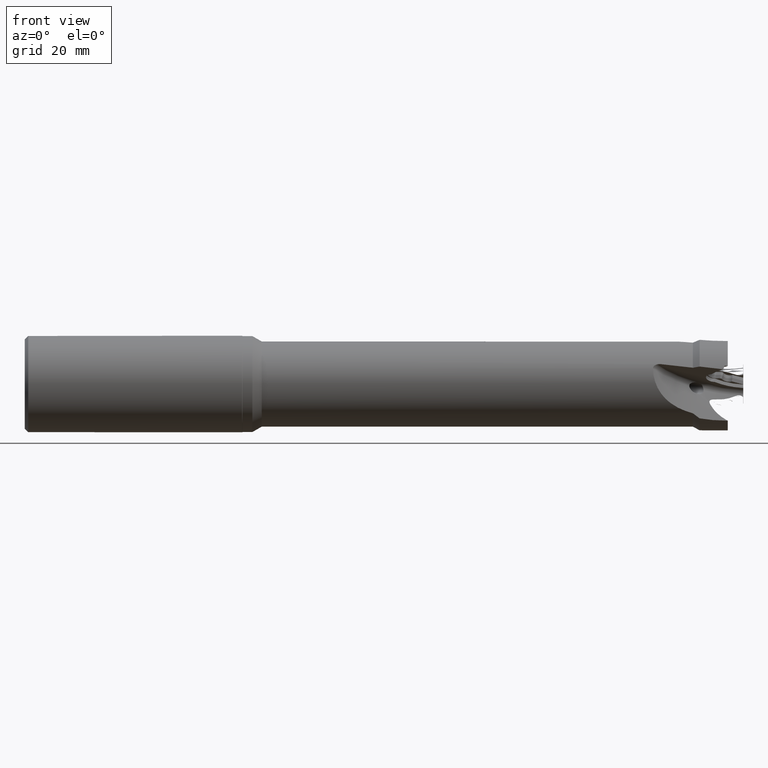
[diagram: clean part render]
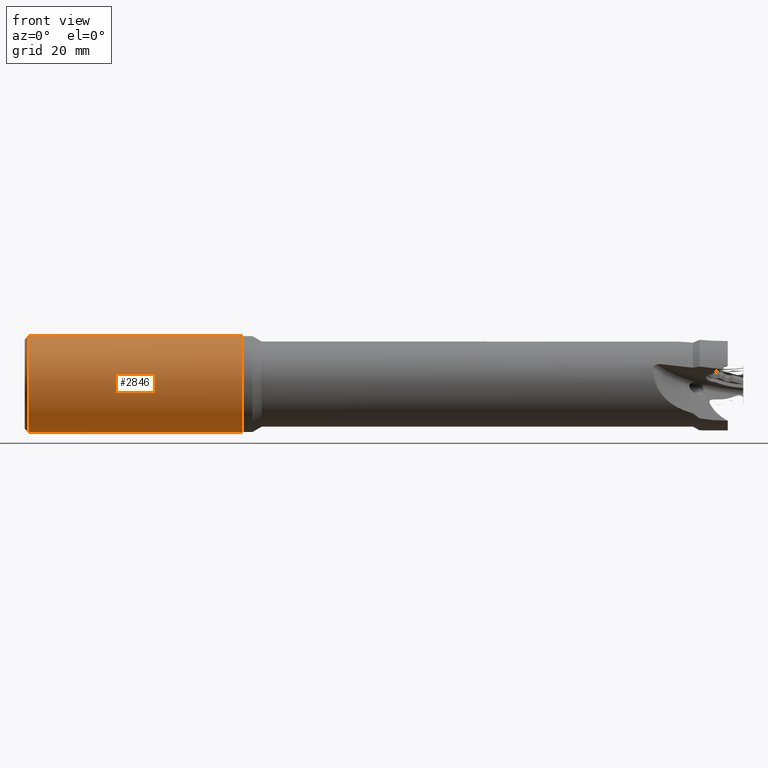
[diagram: same view with one face highlighted and labeled with its STEP entity id]
A machine part, front view. The second image highlights one B-rep face of the part: STEP entity #2846.
In plain terms, the highlighted cylindrical surface (bore or boss wall) has radius 12.5 mm, axis along (1, -0, -0).
Its self-contained STEP definition (entity closure, byte-faithful):
#55 = VERTEX_POINT ( 'NONE', #2249 ) ;
#192 = EDGE_CURVE ( 'NONE', #1430, #1270, #1428, .T. ) ;
#196 = VECTOR ( 'NONE', #2540, 1000.000000000000000 ) ;
#236 = DIRECTION ( 'NONE',  ( 1.000000000000000000, -0.0000000000000000000, -0.0000000000000000000 ) ) ;
#271 = EDGE_CURVE ( 'NONE', #2369, #2369, #1648, .T. ) ;
#353 = CARTESIAN_POINT ( 'NONE',  ( -147.7500000000000300, 9.700000000000040100, -7.884161337770732000 ) ) ;
#364 = EDGE_LOOP ( 'NONE', ( #2328, #3638, #519, #1821 ) ) ;
#379 = CARTESIAN_POINT ( 'NONE',  ( -147.7500000000000300, 9.700000000000040100, 7.884161337770732000 ) ) ;
#393 = CARTESIAN_POINT ( 'NONE',  ( -184.8999999999999500, 9.600000000000086700, 8.005623023850043700 ) ) ;
#449 = ORIENTED_EDGE ( 'NONE', *, *, #271, .T. ) ;
#519 = ORIENTED_EDGE ( 'NONE', *, *, #3494, .F. ) ;
#555 = CARTESIAN_POINT ( 'NONE',  ( -1.390646092311991700E-015, 9.700000000000040100, -7.884161337770732000 ) ) ;
#618 = CARTESIAN_POINT ( 'NONE',  ( -147.7500000000000300, 9.700000000000040100, -7.884161337770732000 ) ) ;
#653 = VERTEX_POINT ( 'NONE', #379 ) ;
#703 = CARTESIAN_POINT ( 'NONE',  ( -147.7500000000000300, 9.700000000000040100, 7.884161337770732000 ) ) ;
#724 = ORIENTED_EDGE ( 'NONE', *, *, #3837, .T. ) ;
#754 = FACE_OUTER_BOUND ( 'NONE', #3699, .T. ) ;
#786 =( BOUNDED_CURVE ( )  B_SPLINE_CURVE ( 3, ( #3462, #943, #4159, #2017 ),
 .UNSPECIFIED., .F., .F. ) 
 B_SPLINE_CURVE_WITH_KNOTS ( ( 4, 4 ),
 ( 5.600687989903622800, 6.965682624455554100 ),
 .UNSPECIFIED. ) 
 CURVE ( )  GEOMETRIC_REPRESENTATION_ITEM ( )  RATIONAL_B_SPLINE_CURVE ( ( 1.000000000000000000, 0.8506666666666691200, 0.8506666666666691200, 1.000000000000000000 ) ) 
 REPRESENTATION_ITEM ( '' )  );
#787 = ORIENTED_EDGE ( 'NONE', *, *, #1034, .F. ) ;
#816 = LINE ( 'NONE', #3388, #3562 ) ;
#828 = CARTESIAN_POINT ( 'NONE',  ( -184.8999999999999500, 9.600000000000086700, 8.005623023850043700 ) ) ;
#943 = CARTESIAN_POINT ( 'NONE',  ( -164.9028213166144800, 13.59717868338554700, 3.089404912919531600 ) ) ;
#958 = ORIENTED_EDGE ( 'NONE', *, *, #192, .F. ) ;
#986 = VERTEX_POINT ( 'NONE', #1932 ) ;
#1034 = EDGE_CURVE ( 'NONE', #2615, #986, #4345, .T. ) ;
#1117 = CARTESIAN_POINT ( 'NONE',  ( -184.8000000000000100, 9.700000000000073900, 7.884161337770690300 ) ) ;
#1270 = VERTEX_POINT ( 'NONE', #2379 ) ;
#1320 = AXIS2_PLACEMENT_3D ( 'NONE', #3827, #2757, #4538 ) ;
#1369 = CARTESIAN_POINT ( 'NONE',  ( -129.6267949192431100, 0.0000000000000000000, 0.0000000000000000000 ) ) ;
#1418 = CARTESIAN_POINT ( 'NONE',  ( -143.8528213166145500, 13.59717868338553800, 3.089404912919560400 ) ) ;
#1428 = LINE ( 'NONE', #2827, #4170 ) ;
#1430 = VERTEX_POINT ( 'NONE', #2677 ) ;
#1460 = CARTESIAN_POINT ( 'NONE',  ( -159.8500000000000200, 9.700000000000017100, 7.884161337770756000 ) ) ;
#1471 = FACE_OUTER_BOUND ( 'NONE', #3299, .T. ) ;
#1535 = CIRCLE ( 'NONE', #3860, 12.49999999999998200 ) ;
#1563 = VERTEX_POINT ( 'NONE', #3849 ) ;
#1582 = DIRECTION ( 'NONE',  ( -1.000000000000000000, 0.0000000000000000000, 0.0000000000000000000 ) ) ;
#1648 = CIRCLE ( 'NONE', #2428, 12.49999999999998200 ) ;
#1799 = DIRECTION ( 'NONE',  ( 1.000000000000000000, -0.0000000000000000000, -0.0000000000000000000 ) ) ;
#1821 = ORIENTED_EDGE ( 'NONE', *, *, #3678, .F. ) ;
#1932 = CARTESIAN_POINT ( 'NONE',  ( -184.8999999999999500, 9.600000000000079600, -8.005623023850050800 ) ) ;
#1959 = CARTESIAN_POINT ( 'NONE',  ( -184.8000000000000100, 9.700000000000073900, -7.884161337770690300 ) ) ;
#1989 = VECTOR ( 'NONE', #1582, 1000.000000000000000 ) ;
#1997 = CARTESIAN_POINT ( 'NONE',  ( -184.8664120880139000, 9.633587911986161600, -7.965345839412843400 ) ) ;
#2017 = CARTESIAN_POINT ( 'NONE',  ( -168.8000000000000100, 9.700000000000017100, -7.884161337770756000 ) ) ;
#2053 = ORIENTED_EDGE ( 'NONE', *, *, #3543, .F. ) ;
#2168 = CARTESIAN_POINT ( 'NONE',  ( -159.8500000000000200, 9.700000000000017100, -7.884161337770756000 ) ) ;
#2235 =( BOUNDED_CURVE ( )  B_SPLINE_CURVE ( 3, ( #393, #2910, #3275, #1117 ),
 .UNSPECIFIED., .F., .T. ) 
 B_SPLINE_CURVE_WITH_KNOTS ( ( 4, 4 ),
 ( 5.588101452849827000, 5.600687989903624600 ),
 .UNSPECIFIED. ) 
 CURVE ( )  GEOMETRIC_REPRESENTATION_ITEM ( )  RATIONAL_B_SPLINE_CURVE ( ( 1.000000000000000000, 0.9999867983006540700, 0.9999867983006540700, 1.000000000000000000 ) ) 
 REPRESENTATION_ITEM ( '' )  );
#2249 = CARTESIAN_POINT ( 'NONE',  ( -168.8000000000000100, 9.700000000000017100, -7.884161337770756000 ) ) ;
#2286 = CARTESIAN_POINT ( 'NONE',  ( -129.6267949192431100, 0.0000000000000000000, 12.49999999999998200 ) ) ;
#2315 = CYLINDRICAL_SURFACE ( 'NONE', #1320, 12.49999999999998200 ) ;
#2328 = ORIENTED_EDGE ( 'NONE', *, *, #4405, .F. ) ;
#2357 = EDGE_CURVE ( 'NONE', #55, #2615, #816, .T. ) ;
#2369 = VERTEX_POINT ( 'NONE', #2286 ) ;
#2370 = CARTESIAN_POINT ( 'NONE',  ( -184.8999999999999500, 0.0000000000000000000, 0.0000000000000000000 ) ) ;
#2379 = CARTESIAN_POINT ( 'NONE',  ( -168.8000000000000100, 9.700000000000017100, 7.884161337770693800 ) ) ;
#2392 = VERTEX_POINT ( 'NONE', #2511 ) ;
#2428 = AXIS2_PLACEMENT_3D ( 'NONE', #1369, #3549, #3205 ) ;
#2509 = CARTESIAN_POINT ( 'NONE',  ( -143.8528213166145500, 13.59717868338553800, -3.089404912919556000 ) ) ;
#2511 = CARTESIAN_POINT ( 'NONE',  ( -159.8500000000000200, 9.700000000000017100, -7.884161337770756000 ) ) ;
#2540 = DIRECTION ( 'NONE',  ( 1.000000000000000000, -0.0000000000000000000, -0.0000000000000000000 ) ) ;
#2615 = VERTEX_POINT ( 'NONE', #1959 ) ;
#2677 = CARTESIAN_POINT ( 'NONE',  ( -184.8000000000000100, 9.700000000000073900, 7.884161337770690300 ) ) ;
#2741 = DIRECTION ( 'NONE',  ( 0.0000000000000000000, 0.0000000000000000000, -1.000000000000000000 ) ) ;
#2757 = DIRECTION ( 'NONE',  ( 1.000000000000000000, -0.0000000000000000000, -0.0000000000000000000 ) ) ;
#2827 = CARTESIAN_POINT ( 'NONE',  ( -3.155028321932838800E-015, 9.700000000000073900, 7.884161337770690300 ) ) ;
#2846 = ADVANCED_FACE ( 'NONE', ( #1471, #3393, #754 ), #2315, .T. ) ;
#2910 = CARTESIAN_POINT ( 'NONE',  ( -184.8664120880139000, 9.633587911986163400, 7.965345839412839800 ) ) ;
#3088 =( BOUNDED_CURVE ( )  B_SPLINE_CURVE ( 3, ( #2168, #3609, #3627, #1460 ),
 .UNSPECIFIED., .F., .F. ) 
 B_SPLINE_CURVE_WITH_KNOTS ( ( 4, 4 ),
 ( 2.459095336313826200, 3.824089970865760500 ),
 .UNSPECIFIED. ) 
 CURVE ( )  GEOMETRIC_REPRESENTATION_ITEM ( )  RATIONAL_B_SPLINE_CURVE ( ( 1.000000000000000000, 0.8506666666666685700, 0.8506666666666685700, 1.000000000000000000 ) ) 
 REPRESENTATION_ITEM ( '' )  );
#3205 = DIRECTION ( 'NONE',  ( 0.0000000000000000000, 0.0000000000000000000, 1.000000000000000000 ) ) ;
#3275 = CARTESIAN_POINT ( 'NONE',  ( -184.8330783146181500, 9.666921685381940000, 7.924858076212451000 ) ) ;
#3297 = VERTEX_POINT ( 'NONE', #828 ) ;
#3299 = EDGE_LOOP ( 'NONE', ( #449 ) ) ;
#3333 = LINE ( 'NONE', #4320, #196 ) ;
#3388 = CARTESIAN_POINT ( 'NONE',  ( -3.155028321932838800E-015, 9.700000000000073900, -7.884161337770690300 ) ) ;
#3393 = FACE_BOUND ( 'NONE', #364, .T. ) ;
#3462 = CARTESIAN_POINT ( 'NONE',  ( -168.8000000000000100, 9.700000000000017100, 7.884161337770693800 ) ) ;
#3494 = EDGE_CURVE ( 'NONE', #3909, #2392, #4007, .T. ) ;
#3543 = EDGE_CURVE ( 'NONE', #1270, #55, #786, .T. ) ;
#3549 = DIRECTION ( 'NONE',  ( -1.000000000000000000, 0.0000000000000000000, 0.0000000000000000000 ) ) ;
#3562 = VECTOR ( 'NONE', #4095, 1000.000000000000000 ) ;
#3609 = CARTESIAN_POINT ( 'NONE',  ( -163.7471786833855300, 13.59717868338554300, -3.089404912919564900 ) ) ;
#3627 = CARTESIAN_POINT ( 'NONE',  ( -163.7471786833855300, 13.59717868338554300, 3.089404912919566600 ) ) ;
#3638 = ORIENTED_EDGE ( 'NONE', *, *, #4151, .F. ) ;
#3678 = EDGE_CURVE ( 'NONE', #653, #3909, #3773, .T. ) ;
#3699 = EDGE_LOOP ( 'NONE', ( #4129, #2053, #958, #4522, #724, #787 ) ) ;
#3773 =( BOUNDED_CURVE ( )  B_SPLINE_CURVE ( 3, ( #703, #1418, #2509, #353 ),
 .UNSPECIFIED., .F., .F. ) 
 B_SPLINE_CURVE_WITH_KNOTS ( ( 4, 4 ),
 ( 5.600687989903621000, 6.965682624455551400 ),
 .UNSPECIFIED. ) 
 CURVE ( )  GEOMETRIC_REPRESENTATION_ITEM ( )  RATIONAL_B_SPLINE_CURVE ( ( 1.000000000000000000, 0.8506666666666694600, 0.8506666666666694600, 1.000000000000000000 ) ) 
 REPRESENTATION_ITEM ( '' )  );
#3792 = CARTESIAN_POINT ( 'NONE',  ( -184.8000000000000100, 9.700000000000073900, -7.884161337770690300 ) ) ;
#3827 = CARTESIAN_POINT ( 'NONE',  ( 0.0000000000000000000, 0.0000000000000000000, 0.0000000000000000000 ) ) ;
#3837 = EDGE_CURVE ( 'NONE', #3297, #986, #1535, .T. ) ;
#3849 = CARTESIAN_POINT ( 'NONE',  ( -159.8500000000000200, 9.700000000000017100, 7.884161337770756000 ) ) ;
#3860 = AXIS2_PLACEMENT_3D ( 'NONE', #2370, #236, #2741 ) ;
#3909 = VERTEX_POINT ( 'NONE', #618 ) ;
#4007 = LINE ( 'NONE', #555, #1989 ) ;
#4095 = DIRECTION ( 'NONE',  ( -1.000000000000000000, 0.0000000000000000000, 0.0000000000000000000 ) ) ;
#4129 = ORIENTED_EDGE ( 'NONE', *, *, #2357, .F. ) ;
#4137 = CARTESIAN_POINT ( 'NONE',  ( -184.8330783146181500, 9.666921685381938200, -7.924858076212454500 ) ) ;
#4151 = EDGE_CURVE ( 'NONE', #2392, #1563, #3088, .T. ) ;
#4159 = CARTESIAN_POINT ( 'NONE',  ( -164.9028213166144800, 13.59717868338553100, -3.089404912919587500 ) ) ;
#4170 = VECTOR ( 'NONE', #1799, 1000.000000000000000 ) ;
#4191 = EDGE_CURVE ( 'NONE', #3297, #1430, #2235, .T. ) ;
#4320 = CARTESIAN_POINT ( 'NONE',  ( -1.390646092311991700E-015, 9.700000000000040100, 7.884161337770732000 ) ) ;
#4345 =( BOUNDED_CURVE ( )  B_SPLINE_CURVE ( 3, ( #3792, #4137, #1997, #4499 ),
 .UNSPECIFIED., .F., .F. ) 
 B_SPLINE_CURVE_WITH_KNOTS ( ( 4, 4 ),
 ( 0.6824973172759619700, 0.6950838543297599400 ),
 .UNSPECIFIED. ) 
 CURVE ( )  GEOMETRIC_REPRESENTATION_ITEM ( )  RATIONAL_B_SPLINE_CURVE ( ( 1.000000000000000000, 0.9999867983006540700, 0.9999867983006540700, 1.000000000000000000 ) ) 
 REPRESENTATION_ITEM ( '' )  );
#4405 = EDGE_CURVE ( 'NONE', #1563, #653, #3333, .T. ) ;
#4499 = CARTESIAN_POINT ( 'NONE',  ( -184.8999999999999500, 9.600000000000079600, -8.005623023850050800 ) ) ;
#4522 = ORIENTED_EDGE ( 'NONE', *, *, #4191, .F. ) ;
#4538 = DIRECTION ( 'NONE',  ( 0.0000000000000000000, 0.0000000000000000000, -1.000000000000000000 ) ) ;